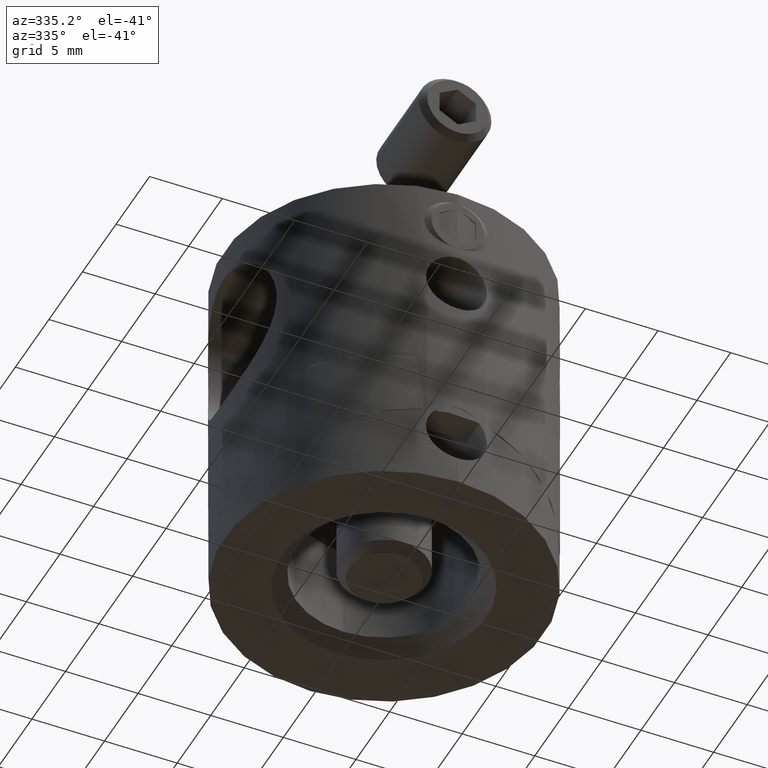
[diagram: clean part render]
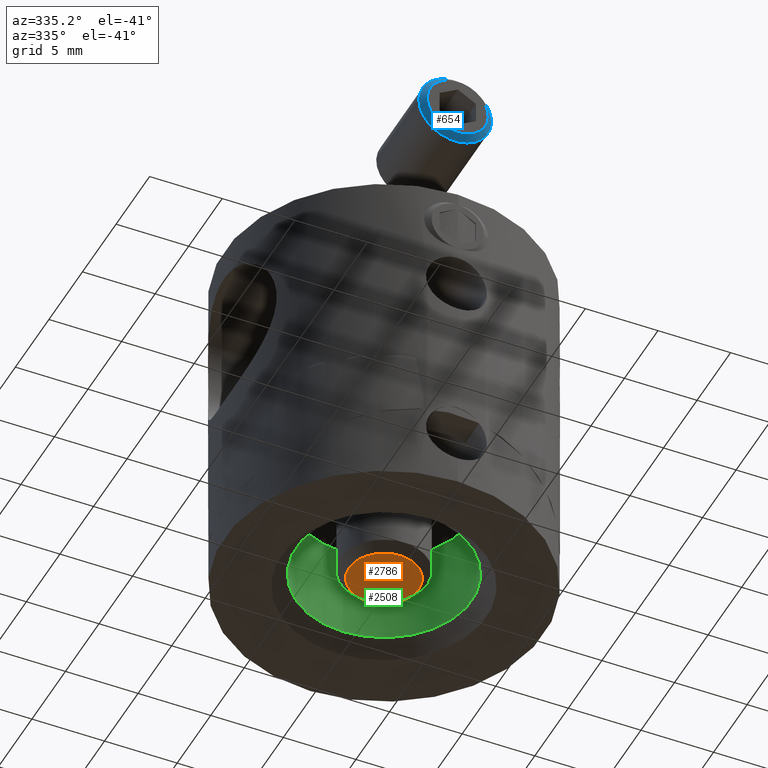
[diagram: same view with three faces highlighted in distinct colors, each labeled with its STEP entity id]
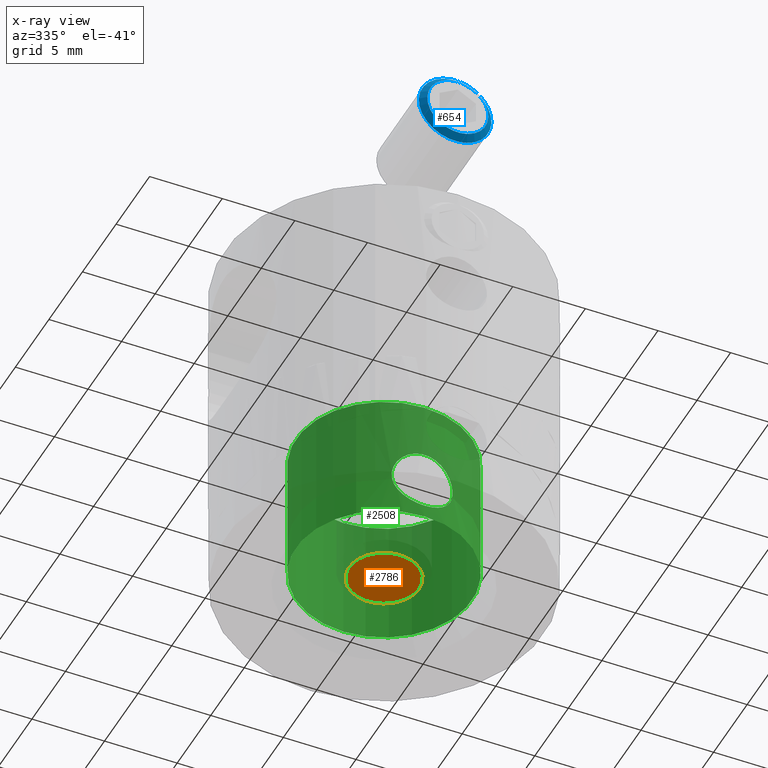
[diagram: x-ray of the same camera — body ghosted, the three highlighted faces saturated]
A machine part, auxiliary view with three faces highlighted in distinct colors.
The next image is the same camera in x-ray (body ghosted, the three faces saturated) — at least one of them is partly hidden behind the body in this view.
Their STEP definitions:

[orange] entity #2786 — the highlighted planar face has unit normal (-0, 0, -1).
#266 = DIRECTION ( 'NONE',  ( 0.000000000000000000, -1.224646799147353207E-16, 1.000000000000000000 ) ) ;
#655 = DIRECTION ( 'NONE',  ( 0.000000000000000000, -1.000000000000000000, -1.224646799147353207E-16 ) ) ;
#740 = DIRECTION ( 'NONE',  ( 0.000000000000000000, -1.224646799147353207E-16, 1.000000000000000000 ) ) ;
#2176 = DIRECTION ( 'NONE',  ( 0.000000000000000000, -1.000000000000000000, 0.000000000000000000 ) ) ;
#2201 = CIRCLE ( 'NONE', #2646, 2.399999999999985256 ) ;
#2646 = AXIS2_PLACEMENT_3D ( 'NONE', #3040, #740, #2176 ) ;
#2727 = FACE_OUTER_BOUND ( 'NONE', #5489, .T. ) ;
#2750 = EDGE_CURVE ( 'NONE', #3596, #3596, #2201, .T. ) ;
#2786 = ADVANCED_FACE ( 'NONE', ( #2727 ), #4478, .T. ) ;
#2955 = AXIS2_PLACEMENT_3D ( 'NONE', #3105, #266, #655 ) ;
#3040 = CARTESIAN_POINT ( 'NONE',  ( 0.000000000000000000, -3.061616997868383437E-15, 25.00000000000000355 ) ) ;
#3105 = CARTESIAN_POINT ( 'NONE',  ( 0.000000000000000000, -3.061616997868383437E-15, 25.00000000000000355 ) ) ;
#3257 = CARTESIAN_POINT ( 'NONE',  ( 0.000000000000000000, -2.399999999999987921, 25.00000000000000355 ) ) ;
#3596 = VERTEX_POINT ( 'NONE', #3257 ) ;
#4478 = PLANE ( 'NONE',  #2955 ) ;
#5489 = EDGE_LOOP ( 'NONE', ( #5814 ) ) ;
#5814 = ORIENTED_EDGE ( 'NONE', *, *, #2750, .T. ) ;

[blue] entity #654 — the highlighted conical surface has half-angle 45 deg.
#354 = ORIENTED_EDGE ( 'NONE', *, *, #5730, .F. ) ;
#475 = CIRCLE ( 'NONE', #3446, 2.100000000000000089 ) ;
#654 = ADVANCED_FACE ( 'NONE', ( #3635, #3255 ), #4827, .T. ) ;
#1428 = EDGE_LOOP ( 'NONE', ( #354 ) ) ;
#1455 = DIRECTION ( 'NONE',  ( 0.000000000000000000, 0.000000000000000000, -1.000000000000000000 ) ) ;
#1645 = DIRECTION ( 'NONE',  ( 0.000000000000000000, 0.000000000000000000, -1.000000000000000000 ) ) ;
#1960 = DIRECTION ( 'NONE',  ( -1.000000000000000000, 0.000000000000000000, 0.000000000000000000 ) ) ;
#2000 = AXIS2_PLACEMENT_3D ( 'NONE', #5289, #1455, #1960 ) ;
#2628 = VERTEX_POINT ( 'NONE', #3739 ) ;
#3255 = FACE_BOUND ( 'NONE', #1428, .T. ) ;
#3279 = CARTESIAN_POINT ( 'NONE',  ( -2.500000000000000000, 0.000000000000000000, -0.4000000000000011324 ) ) ;
#3308 = CARTESIAN_POINT ( 'NONE',  ( 0.000000000000000000, 0.000000000000000000, 0.000000000000000000 ) ) ;
#3446 = AXIS2_PLACEMENT_3D ( 'NONE', #3308, #4261, #5942 ) ;
#3555 = EDGE_LOOP ( 'NONE', ( #4778 ) ) ;
#3635 = FACE_OUTER_BOUND ( 'NONE', #3555, .T. ) ;
#3739 = CARTESIAN_POINT ( 'NONE',  ( -2.100000000000000089, 0.000000000000000000, 0.000000000000000000 ) ) ;
#4020 = AXIS2_PLACEMENT_3D ( 'NONE', #4944, #1645, #4486 ) ;
#4261 = DIRECTION ( 'NONE',  ( -0.000000000000000000, -0.000000000000000000, 1.000000000000000000 ) ) ;
#4486 = DIRECTION ( 'NONE',  ( -1.000000000000000000, 0.000000000000000000, 0.000000000000000000 ) ) ;
#4778 = ORIENTED_EDGE ( 'NONE', *, *, #5769, .F. ) ;
#4827 = CONICAL_SURFACE ( 'NONE', #2000, 2.100000000000000089, 0.7853981633974466137 ) ;
#4944 = CARTESIAN_POINT ( 'NONE',  ( 0.000000000000000000, 0.000000000000000000, -0.4000000000000011324 ) ) ;
#5065 = CIRCLE ( 'NONE', #4020, 2.500000000000000000 ) ;
#5289 = CARTESIAN_POINT ( 'NONE',  ( 0.000000000000000000, 0.000000000000000000, 0.000000000000000000 ) ) ;
#5671 = VERTEX_POINT ( 'NONE', #3279 ) ;
#5730 = EDGE_CURVE ( 'NONE', #2628, #2628, #475, .T. ) ;
#5769 = EDGE_CURVE ( 'NONE', #5671, #5671, #5065, .T. ) ;
#5942 = DIRECTION ( 'NONE',  ( -1.000000000000000000, 0.000000000000000000, 0.000000000000000000 ) ) ;

[green] entity #2508 — the highlighted cylindrical surface (bore or boss wall) has radius 6.05 mm, axis along (0, 0, -1).
#35 = CARTESIAN_POINT ( 'NONE',  ( 2.032092219697879010, -5.698590089353100296, -8.452645647550122376 ) ) ;
#58 = CARTESIAN_POINT ( 'NONE',  ( 1.581308756655631864, -5.840537573381246794, -7.611440555362619875 ) ) ;
#70 = DIRECTION ( 'NONE',  ( -0.000000000000000000, 1.221035599223791951E-16, -1.000000000000000000 ) ) ;
#95 = CARTESIAN_POINT ( 'NONE',  ( 1.885730099252477254, -5.748884500913227669, -8.065556107974956035 ) ) ;
#135 = CARTESIAN_POINT ( 'NONE',  ( -2.085968176298856669, -5.679090304225507424, -8.721325616715200013 ) ) ;
#154 = CARTESIAN_POINT ( 'NONE',  ( -0.1399094874859273530, -6.049999999999998934, -11.09999999999999787 ) ) ;
#163 = EDGE_CURVE ( 'NONE', #5374, #5374, #866, .T. ) ;
#172 = CARTESIAN_POINT ( 'NONE',  ( -1.679013435041563085, -5.815794899478619939, -7.709183467151893510 ) ) ;
#209 = EDGE_CURVE ( 'NONE', #3743, #3743, #4524, .T. ) ;
#477 = EDGE_CURVE ( 'NONE', #2985, #2985, #4889, .T. ) ;
#503 = CARTESIAN_POINT ( 'NONE',  ( 1.833375222520310599, -5.766588150094817067, -10.05988853332625332 ) ) ;
#504 = ORIENTED_EDGE ( 'NONE', *, *, #477, .F. ) ;
#522 = CARTESIAN_POINT ( 'NONE',  ( 0.5499007699519290471, -6.026500863612104020, -6.968529175330919756 ) ) ;
#579 = DIRECTION ( 'NONE',  ( 0.000000000000000000, 1.000000000000000000, 0.000000000000000000 ) ) ;
#580 = CARTESIAN_POINT ( 'NONE',  ( 0.9350300702962209831, -5.978680807457250168, -10.88537320744207904 ) ) ;
#866 = B_SPLINE_CURVE_WITH_KNOTS ( 'NONE', 3,
 ( #5282, #1987, #1969, #5300, #5792, #580, #2460, #5320, #2478, #1906, #503, #3906, #1041, #991, #4317, #2422, #1419, #35, #5775, #95, #5729, #3347, #58, #3829, #4779, #1949, #3887, #2443, #522, #5756, #4803, #1082, #4898, #2561, #1601, #2500, #1121, #1584, #3927, #172, #2541, #4442, #2054, #135, #4397, #4915, #4376, #5402, #5874, #4937, #5809, #4462, #2075, #1064, #3489, #5854, #5341, #3003, #154, #5832 ),
 .UNSPECIFIED., .T., .F.,
 ( 4, 2, 2, 2, 2, 2, 2, 2, 2, 2, 2, 2, 2, 2, 2, 2, 2, 2, 2, 2, 2, 2, 2, 2, 2, 2, 2, 2, 2, 4 ),
 ( 0.000000000000000000, 0.0004135417857046661677, 0.0008270835714093323354, 0.001240625357113998503, 0.001654167142818664671, 0.002481250714227997006, 0.002894792499932662740, 0.003308334285637328474, 0.003721876071341993775, 0.004135417857046659075, 0.004548959642751324375, 0.004962501428455987941, 0.005376043214160651507, 0.005789584999865314205, 0.006203126785569977771, 0.006616668571274640469, 0.007030210356979304034, 0.007443752142683966733, 0.007857293928388629431, 0.008270835714093293864, 0.009097919285502620995, 0.009511461071207285428, 0.009925002856911949861, 0.01033854464261661603, 0.01075208642832128046, 0.01157916999973060933, 0.01199271178543527550, 0.01240625357113993993, 0.01281979535684460436, 0.01323333714254926706 ),
 .UNSPECIFIED. ) ;
#991 = CARTESIAN_POINT ( 'NONE',  ( 2.086298412965085891, -5.678969576372753458, -9.276648808254051914 ) ) ;
#1041 = CARTESIAN_POINT ( 'NONE',  ( 2.031906570704638870, -5.698657052783162591, -9.548207368589965327 ) ) ;
#1064 = CARTESIAN_POINT ( 'NONE',  ( -1.054968530237155866, -5.958429929104765321, -10.82089231973254329 ) ) ;
#1082 = CARTESIAN_POINT ( 'NONE',  ( -0.1370078424113408966, -6.050018272139330300, -6.899947358833300015 ) ) ;
#1121 = CARTESIAN_POINT ( 'NONE',  ( -1.056207286875700424, -5.958209884054677552, -7.179824287212644762 ) ) ;
#1295 = FACE_OUTER_BOUND ( 'NONE', #3928, .T. ) ;
#1314 = AXIS2_PLACEMENT_3D ( 'NONE', #2947, #3428, #579 ) ;
#1377 = ORIENTED_EDGE ( 'NONE', *, *, #163, .T. ) ;
#1419 = CARTESIAN_POINT ( 'NONE',  ( 2.086199626509825489, -5.679005098974669430, -8.722931967104218032 ) ) ;
#1584 = CARTESIAN_POINT ( 'NONE',  ( -1.282838274904412490, -5.913557712218290519, -7.331785559734434798 ) ) ;
#1601 = CARTESIAN_POINT ( 'NONE',  ( -0.6798199956223249796, -6.013045120364453489, -7.008341673257475257 ) ) ;
#1658 = AXIS2_PLACEMENT_3D ( 'NONE', #2965, #3968, #5360 ) ;
#1824 = FACE_OUTER_BOUND ( 'NONE', #5219, .T. ) ;
#1906 = CARTESIAN_POINT ( 'NONE',  ( 1.677515665356957619, -5.816156680805213419, -10.29218480352837695 ) ) ;
#1949 = CARTESIAN_POINT ( 'NONE',  ( 1.056540751299541947, -5.958152591912580398, -7.180007939861434707 ) ) ;
#1969 = CARTESIAN_POINT ( 'NONE',  ( 0.2772732166670282550, -6.045156484697385757, -11.08615960140718570 ) ) ;
#1987 = CARTESIAN_POINT ( 'NONE',  ( 0.1399094874859282966, -6.050000000000001599, -11.09999999999999787 ) ) ;
#2054 = CARTESIAN_POINT ( 'NONE',  ( -2.031790601906988236, -5.698697821966189458, -8.451593586440516503 ) ) ;
#2075 = CARTESIAN_POINT ( 'NONE',  ( -1.281667734744786236, -5.913812107055512968, -10.66911211653557601 ) ) ;
#2106 = ORIENTED_EDGE ( 'NONE', *, *, #209, .T. ) ;
#2351 = CARTESIAN_POINT ( 'NONE',  ( 0.000000000000000000, -6.049999999999999822, -11.09999999999999609 ) ) ;
#2422 = CARTESIAN_POINT ( 'NONE',  ( 2.100097112875726868, -5.673807551136180294, -8.863299646582754932 ) ) ;
#2443 = CARTESIAN_POINT ( 'NONE',  ( 0.6809899078971618502, -6.012903857969324584, -7.008770919710036296 ) ) ;
#2460 = CARTESIAN_POINT ( 'NONE',  ( 1.055254178886850136, -5.958387006382904083, -10.82076416189327794 ) ) ;
#2478 = CARTESIAN_POINT ( 'NONE',  ( 1.389485210169927321, -5.889112003224027170, -10.58043694724463357 ) ) ;
#2500 = CARTESIAN_POINT ( 'NONE',  ( -0.9334016992415116176, -5.978932021175665135, -7.113834740860747630 ) ) ;
#2508 = ADVANCED_FACE ( 'NONE', ( #4810, #1824, #1295 ), #6145, .F. ) ;
#2541 = CARTESIAN_POINT ( 'NONE',  ( -1.832674874622926442, -5.766831447283050416, -7.938154285827224044 ) ) ;
#2561 = CARTESIAN_POINT ( 'NONE',  ( -0.5484315143079885324, -6.026637946847929861, -6.968123526063984663 ) ) ;
#2902 = CARTESIAN_POINT ( 'NONE',  ( 0.000000000000000000, -1.221035599223792050E-15, -3.000000000000000888 ) ) ;
#2947 = CARTESIAN_POINT ( 'NONE',  ( 0.000000000000000000, 0.000000000000000000, -13.00000000000000178 ) ) ;
#2965 = CARTESIAN_POINT ( 'NONE',  ( 0.000000000000000000, -1.221035599223777406E-16, -12.00000000000001243 ) ) ;
#2985 = VERTEX_POINT ( 'NONE', #5667 ) ;
#3003 = CARTESIAN_POINT ( 'NONE',  ( -0.2772861503185984344, -6.045152451168054775, -11.08614745265201762 ) ) ;
#3347 = CARTESIAN_POINT ( 'NONE',  ( 1.669091256392895239, -5.815745814966070348, -7.718326810072279720 ) ) ;
#3428 = DIRECTION ( 'NONE',  ( -0.000000000000000000, 1.221035599223791951E-16, -1.000000000000000000 ) ) ;
#3489 = CARTESIAN_POINT ( 'NONE',  ( -0.9348990817558912036, -5.978705317257419161, -10.88545226405776489 ) ) ;
#3743 = VERTEX_POINT ( 'NONE', #4839 ) ;
#3829 = CARTESIAN_POINT ( 'NONE',  ( 1.388236100762571201, -5.889415680565724287, -7.418407371126505723 ) ) ;
#3887 = CARTESIAN_POINT ( 'NONE',  ( 0.9337387309442389816, -5.978870465411910473, -7.114032744933029839 ) ) ;
#3906 = CARTESIAN_POINT ( 'NONE',  ( 1.990986049021030047, -5.713278432952918706, -9.681638947691940444 ) ) ;
#3927 = CARTESIAN_POINT ( 'NONE',  ( -1.387985884028859696, -5.889482939333429812, -7.418128151566114603 ) ) ;
#3928 = EDGE_LOOP ( 'NONE', ( #504 ) ) ;
#3940 = AXIS2_PLACEMENT_3D ( 'NONE', #2902, #70, #5259 ) ;
#3968 = DIRECTION ( 'NONE',  ( 0.000000000000000000, 1.221035599223791951E-16, -1.000000000000000000 ) ) ;
#4317 = CARTESIAN_POINT ( 'NONE',  ( 2.099901838711680124, -5.673879825887594208, -9.139667955912132769 ) ) ;
#4376 = CARTESIAN_POINT ( 'NONE',  ( -2.086446433802004563, -5.678914961500180603, -9.275580519989469863 ) ) ;
#4397 = CARTESIAN_POINT ( 'NONE',  ( -2.100002776509584113, -5.673842466852675237, -8.861644933711625427 ) ) ;
#4442 = CARTESIAN_POINT ( 'NONE',  ( -1.991803295099964233, -5.712998789426672275, -8.320461176367230038 ) ) ;
#4462 = CARTESIAN_POINT ( 'NONE',  ( -1.388895160922097416, -5.889255232830834963, -10.58098121164392147 ) ) ;
#4524 = CIRCLE ( 'NONE', #1658, 6.049999999999999822 ) ;
#4779 = CARTESIAN_POINT ( 'NONE',  ( 1.283353766588672729, -5.913447706495243317, -7.332171301390130402 ) ) ;
#4803 = CARTESIAN_POINT ( 'NONE',  ( 0.1386168427396119451, -6.049981620882074473, -6.900052949366974886 ) ) ;
#4810 = FACE_BOUND ( 'NONE', #5445, .T. ) ;
#4839 = CARTESIAN_POINT ( 'NONE',  ( 0.000000000000000000, -6.049999999999999822, -12.00000000000001243 ) ) ;
#4889 = CIRCLE ( 'NONE', #3940, 6.050000000000000711 ) ;
#4898 = CARTESIAN_POINT ( 'NONE',  ( -0.2759941719176380870, -6.045243525726740508, -6.913585288518047989 ) ) ;
#4915 = CARTESIAN_POINT ( 'NONE',  ( -2.099997222644936823, -5.673844522446161776, -9.138439339059265976 ) ) ;
#4937 = CARTESIAN_POINT ( 'NONE',  ( -1.833356115717839074, -5.766598546717018436, -10.06010383873960734 ) ) ;
#5219 = EDGE_LOOP ( 'NONE', ( #2106 ) ) ;
#5259 = DIRECTION ( 'NONE',  ( 0.000000000000000000, 1.000000000000000000, 1.433655765270088355E-16 ) ) ;
#5282 = CARTESIAN_POINT ( 'NONE',  ( -2.846030702774449139E-16, -6.049999999999999822, -11.09999999999999787 ) ) ;
#5300 = CARTESIAN_POINT ( 'NONE',  ( 0.5471799696909567245, -6.026723109777710974, -11.03212607876413465 ) ) ;
#5320 = CARTESIAN_POINT ( 'NONE',  ( 1.282722272704272193, -5.913591182268109314, -10.66834261661130689 ) ) ;
#5341 = CARTESIAN_POINT ( 'NONE',  ( -0.5468863765269961208, -6.026746307767635535, -11.03219440372573956 ) ) ;
#5360 = DIRECTION ( 'NONE',  ( 0.000000000000000000, -1.000000000000000000, 0.000000000000000000 ) ) ;
#5374 = VERTEX_POINT ( 'NONE', #2351 ) ;
#5402 = CARTESIAN_POINT ( 'NONE',  ( -2.032141678610742019, -5.698572984452232149, -9.547360523033843194 ) ) ;
#5445 = EDGE_LOOP ( 'NONE', ( #1377 ) ) ;
#5667 = CARTESIAN_POINT ( 'NONE',  ( 0.000000000000000000, 6.049999999999999822, -3.000000000000000000 ) ) ;
#5729 = CARTESIAN_POINT ( 'NONE',  ( 1.820668057691347430, -5.770089499320176785, -7.944670851511660636 ) ) ;
#5756 = CARTESIAN_POINT ( 'NONE',  ( 0.2777502533098673565, -6.045159907950944600, -6.913826621524063576 ) ) ;
#5775 = CARTESIAN_POINT ( 'NONE',  ( 1.992076325838970208, -5.712904946180972665, -8.321180947084144464 ) ) ;
#5792 = CARTESIAN_POINT ( 'NONE',  ( 0.6811580974801476618, -6.012896895511600448, -10.99121495824429040 ) ) ;
#5809 = CARTESIAN_POINT ( 'NONE',  ( -1.677628477259460515, -5.816140520493007671, -10.29216412684446702 ) ) ;
#5832 = CARTESIAN_POINT ( 'NONE',  ( -2.846030702774449139E-16, -6.049999999999999822, -11.09999999999999787 ) ) ;
#5854 = CARTESIAN_POINT ( 'NONE',  ( -0.6806531321449275085, -6.012958080460188093, -10.99140097589859444 ) ) ;
#5874 = CARTESIAN_POINT ( 'NONE',  ( -1.991284098162775074, -5.713175649488976049, -9.680838702918435956 ) ) ;
#6145 = CYLINDRICAL_SURFACE ( 'NONE', #1314, 6.049999999999999822 ) ;